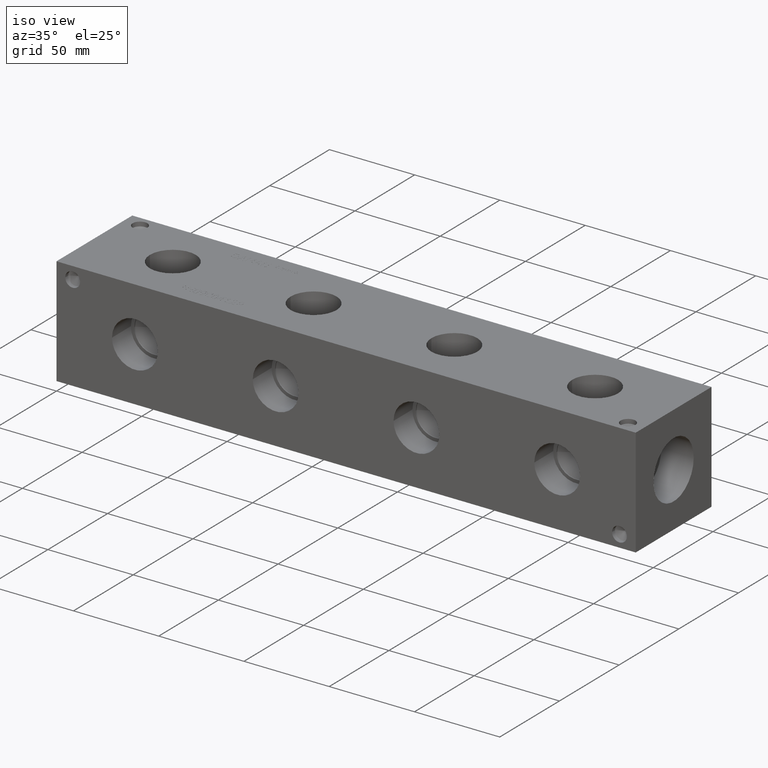
[diagram: clean part render]
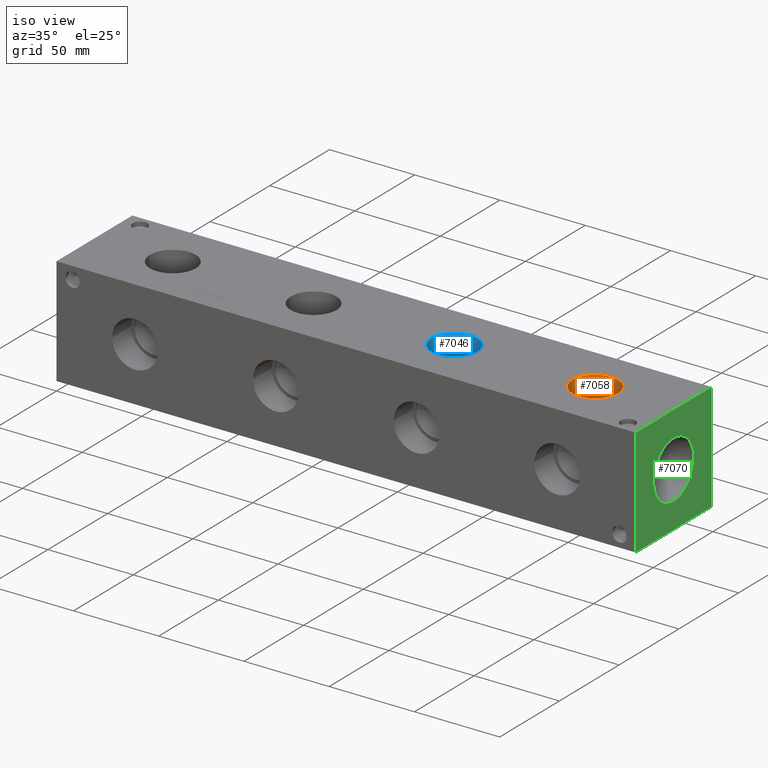
[diagram: same view with three faces highlighted in distinct colors, each labeled with its STEP entity id]
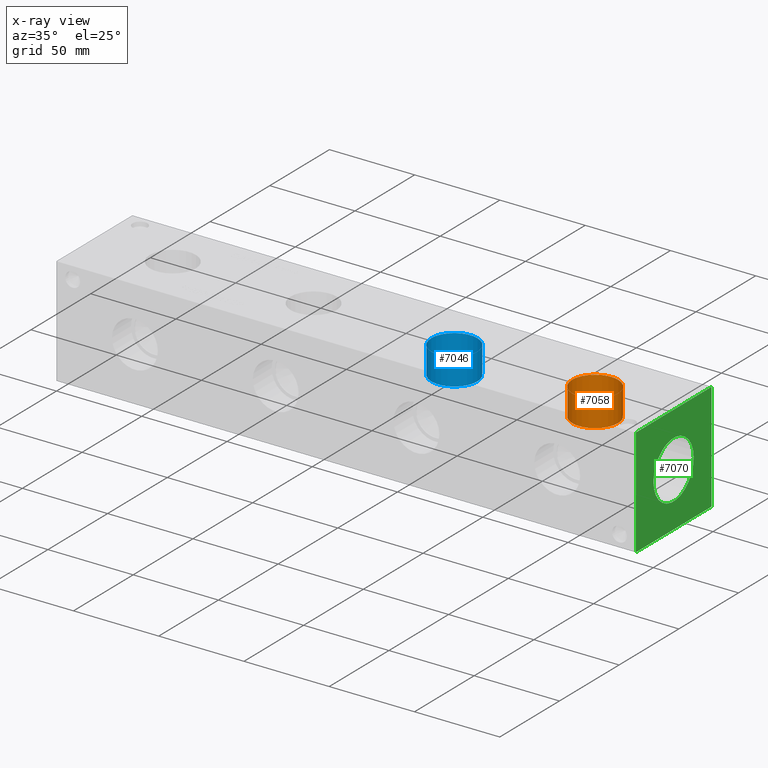
[diagram: x-ray of the same camera — body ghosted, the three highlighted faces saturated]
A machine part, iso view with three faces highlighted in distinct colors.
The next image is the same camera in x-ray (body ghosted, the three faces saturated) — at least one of them is partly hidden behind the body in this view.
Their STEP definitions:

[orange] entity #7058 — the highlighted cylindrical surface (bore or boss wall) has radius 13.462 mm, axis along (0, 0, 1).
#32=CYLINDRICAL_SURFACE('',#7419,13.462);
#52=CIRCLE('',#7169,13.462);
#53=CIRCLE('',#7170,13.462);
#121=CIRCLE('',#7416,13.462);
#122=CIRCLE('',#7417,13.462);
#769=FACE_OUTER_BOUND('',#1169,.T.);
#1169=EDGE_LOOP('',(#6251,#6252,#6253,#6254,#6255,#6256));
#1891=LINE('',#11882,#2603);
#2603=VECTOR('',#8811,13.462);
#3079=VERTEX_POINT('',#10750);
#3080=VERTEX_POINT('',#10751);
#3422=VERTEX_POINT('',#11875);
#3423=VERTEX_POINT('',#11876);
#3884=EDGE_CURVE('',#3079,#3080,#52,.T.);
#3885=EDGE_CURVE('',#3080,#3079,#53,.T.);
#4376=EDGE_CURVE('',#3422,#3423,#121,.T.);
#4377=EDGE_CURVE('',#3423,#3422,#122,.T.);
#4379=EDGE_CURVE('',#3080,#3423,#1891,.T.);
#6251=ORIENTED_EDGE('',*,*,#3884,.F.);
#6252=ORIENTED_EDGE('',*,*,#3885,.F.);
#6253=ORIENTED_EDGE('',*,*,#4379,.T.);
#6254=ORIENTED_EDGE('',*,*,#4376,.F.);
#6255=ORIENTED_EDGE('',*,*,#4377,.F.);
#6256=ORIENTED_EDGE('',*,*,#4379,.F.);
#7058=ADVANCED_FACE('',(#769),#32,.F.);
#7169=AXIS2_PLACEMENT_3D('',#10752,#7902,#7903);
#7170=AXIS2_PLACEMENT_3D('',#10753,#7904,#7905);
#7416=AXIS2_PLACEMENT_3D('',#11877,#8803,#8804);
#7417=AXIS2_PLACEMENT_3D('',#11878,#8805,#8806);
#7419=AXIS2_PLACEMENT_3D('',#11881,#8809,#8810);
#7902=DIRECTION('center_axis',(0.,0.,-1.));
#7903=DIRECTION('ref_axis',(1.,0.,0.));
#7904=DIRECTION('center_axis',(0.,0.,-1.));
#7905=DIRECTION('ref_axis',(1.,0.,0.));
#8803=DIRECTION('center_axis',(0.,0.,1.));
#8804=DIRECTION('ref_axis',(1.,0.,0.));
#8805=DIRECTION('center_axis',(0.,0.,1.));
#8806=DIRECTION('ref_axis',(1.,0.,0.));
#8809=DIRECTION('center_axis',(0.,0.,1.));
#8810=DIRECTION('ref_axis',(1.,0.,0.));
#8811=DIRECTION('',(0.,0.,-1.));
#10750=CARTESIAN_POINT('',(307.1368,31.75,63.5));
#10751=CARTESIAN_POINT('',(280.2128,31.75,63.5));
#10752=CARTESIAN_POINT('Origin',(293.6748,31.75,63.5));
#10753=CARTESIAN_POINT('Origin',(293.6748,31.75,63.5));
#11875=CARTESIAN_POINT('',(307.1368,31.75,47.6504));
#11876=CARTESIAN_POINT('',(280.2128,31.75,47.6504));
#11877=CARTESIAN_POINT('Origin',(293.6748,31.75,47.6504));
#11878=CARTESIAN_POINT('Origin',(293.6748,31.75,47.6504));
#11881=CARTESIAN_POINT('Origin',(293.6748,31.75,55.5752));
#11882=CARTESIAN_POINT('',(280.2128,31.75,55.5752));

[blue] entity #7046 — the highlighted cylindrical surface (bore or boss wall) has radius 13.462 mm, axis along (0, 0, 1).
#26=CYLINDRICAL_SURFACE('',#7392,13.462);
#58=CIRCLE('',#7175,13.462);
#59=CIRCLE('',#7176,13.462);
#106=CIRCLE('',#7389,13.462);
#107=CIRCLE('',#7390,13.462);
#757=FACE_OUTER_BOUND('',#1154,.T.);
#1154=EDGE_LOOP('',(#6197,#6198,#6199,#6200,#6201,#6202));
#1882=LINE('',#11828,#2594);
#2594=VECTOR('',#8748,13.462);
#3085=VERTEX_POINT('',#10762);
#3086=VERTEX_POINT('',#10763);
#3404=VERTEX_POINT('',#11821);
#3405=VERTEX_POINT('',#11822);
#3890=EDGE_CURVE('',#3085,#3086,#58,.T.);
#3891=EDGE_CURVE('',#3086,#3085,#59,.T.);
#4352=EDGE_CURVE('',#3404,#3405,#106,.T.);
#4353=EDGE_CURVE('',#3405,#3404,#107,.T.);
#4355=EDGE_CURVE('',#3086,#3405,#1882,.T.);
#6197=ORIENTED_EDGE('',*,*,#3890,.F.);
#6198=ORIENTED_EDGE('',*,*,#3891,.F.);
#6199=ORIENTED_EDGE('',*,*,#4355,.T.);
#6200=ORIENTED_EDGE('',*,*,#4352,.F.);
#6201=ORIENTED_EDGE('',*,*,#4353,.F.);
#6202=ORIENTED_EDGE('',*,*,#4355,.F.);
#7046=ADVANCED_FACE('',(#757),#26,.F.);
#7175=AXIS2_PLACEMENT_3D('',#10764,#7914,#7915);
#7176=AXIS2_PLACEMENT_3D('',#10765,#7916,#7917);
#7389=AXIS2_PLACEMENT_3D('',#11823,#8740,#8741);
#7390=AXIS2_PLACEMENT_3D('',#11824,#8742,#8743);
#7392=AXIS2_PLACEMENT_3D('',#11827,#8746,#8747);
#7914=DIRECTION('center_axis',(0.,0.,-1.));
#7915=DIRECTION('ref_axis',(1.,0.,0.));
#7916=DIRECTION('center_axis',(0.,0.,-1.));
#7917=DIRECTION('ref_axis',(1.,0.,0.));
#8740=DIRECTION('center_axis',(0.,0.,1.));
#8741=DIRECTION('ref_axis',(1.,0.,0.));
#8742=DIRECTION('center_axis',(0.,0.,1.));
#8743=DIRECTION('ref_axis',(1.,0.,0.));
#8746=DIRECTION('center_axis',(0.,0.,1.));
#8747=DIRECTION('ref_axis',(1.,0.,0.));
#8748=DIRECTION('',(0.,0.,-1.));
#10762=CARTESIAN_POINT('',(224.5868,31.75,63.5));
#10763=CARTESIAN_POINT('',(197.6628,31.75,63.5));
#10764=CARTESIAN_POINT('Origin',(211.1248,31.75,63.5));
#10765=CARTESIAN_POINT('Origin',(211.1248,31.75,63.5));
#11821=CARTESIAN_POINT('',(224.5868,31.75,47.6504));
#11822=CARTESIAN_POINT('',(197.6628,31.75,47.6504));
#11823=CARTESIAN_POINT('Origin',(211.1248,31.75,47.6504));
#11824=CARTESIAN_POINT('Origin',(211.1248,31.75,47.6504));
#11827=CARTESIAN_POINT('Origin',(211.1248,31.75,55.5752));
#11828=CARTESIAN_POINT('',(197.6628,31.75,55.5752));

[green] entity #7070 — the highlighted planar face has unit normal (1, 0, 0).
#129=CIRCLE('',#7429,16.8529);
#130=CIRCLE('',#7430,16.8529);
#183=FACE_BOUND('',#1185,.T.);
#423=PLANE('',#7445);
#781=FACE_OUTER_BOUND('',#1184,.T.);
#1184=EDGE_LOOP('',(#6308,#6309,#6310,#6311));
#1185=EDGE_LOOP('',(#6312,#6313));
#1481=LINE('',#10746,#2193);
#1903=LINE('',#11938,#2615);
#1904=LINE('',#11941,#2616);
#1905=LINE('',#11942,#2617);
#2193=VECTOR('',#7899,10.);
#2615=VECTOR('',#8873,10.);
#2616=VECTOR('',#8876,10.);
#2617=VECTOR('',#8877,10.);
#3076=VERTEX_POINT('',#10743);
#3077=VERTEX_POINT('',#10745);
#3431=VERTEX_POINT('',#11900);
#3432=VERTEX_POINT('',#11901);
#3443=VERTEX_POINT('',#11936);
#3444=VERTEX_POINT('',#11940);
#3881=EDGE_CURVE('',#3076,#3077,#1481,.T.);
#4387=EDGE_CURVE('',#3431,#3432,#129,.T.);
#4388=EDGE_CURVE('',#3432,#3431,#130,.T.);
#4405=EDGE_CURVE('',#3443,#3077,#1903,.T.);
#4406=EDGE_CURVE('',#3444,#3443,#1904,.T.);
#4407=EDGE_CURVE('',#3444,#3076,#1905,.T.);
#6308=ORIENTED_EDGE('',*,*,#4406,.T.);
#6309=ORIENTED_EDGE('',*,*,#4405,.T.);
#6310=ORIENTED_EDGE('',*,*,#3881,.F.);
#6311=ORIENTED_EDGE('',*,*,#4407,.F.);
#6312=ORIENTED_EDGE('',*,*,#4387,.T.);
#6313=ORIENTED_EDGE('',*,*,#4388,.T.);
#7070=ADVANCED_FACE('',(#781,#183),#423,.T.);
#7429=AXIS2_PLACEMENT_3D('',#11902,#8832,#8833);
#7430=AXIS2_PLACEMENT_3D('',#11903,#8834,#8835);
#7445=AXIS2_PLACEMENT_3D('',#11939,#8874,#8875);
#7899=DIRECTION('',(0.,1.,0.));
#8832=DIRECTION('center_axis',(-1.,0.,0.));
#8833=DIRECTION('ref_axis',(0.,1.,0.));
#8834=DIRECTION('center_axis',(-1.,0.,0.));
#8835=DIRECTION('ref_axis',(0.,1.,0.));
#8873=DIRECTION('',(0.,0.,1.));
#8874=DIRECTION('center_axis',(1.,0.,0.));
#8875=DIRECTION('ref_axis',(0.,1.,0.));
#8876=DIRECTION('',(0.,1.,0.));
#8877=DIRECTION('',(0.,0.,1.));
#10743=CARTESIAN_POINT('',(339.725,0.,63.5));
#10745=CARTESIAN_POINT('',(339.725,63.5,63.5));
#10746=CARTESIAN_POINT('',(339.725,0.,63.5));
#11900=CARTESIAN_POINT('',(339.725,48.6029,31.75));
#11901=CARTESIAN_POINT('',(339.725,14.8971,31.75));
#11902=CARTESIAN_POINT('Origin',(339.725,31.75,31.75));
#11903=CARTESIAN_POINT('Origin',(339.725,31.75,31.75));
#11936=CARTESIAN_POINT('',(339.725,63.5,0.));
#11938=CARTESIAN_POINT('',(339.725,63.5,0.));
#11939=CARTESIAN_POINT('Origin',(339.725,0.,0.));
#11940=CARTESIAN_POINT('',(339.725,0.,0.));
#11941=CARTESIAN_POINT('',(339.725,0.,0.));
#11942=CARTESIAN_POINT('',(339.725,0.,0.));